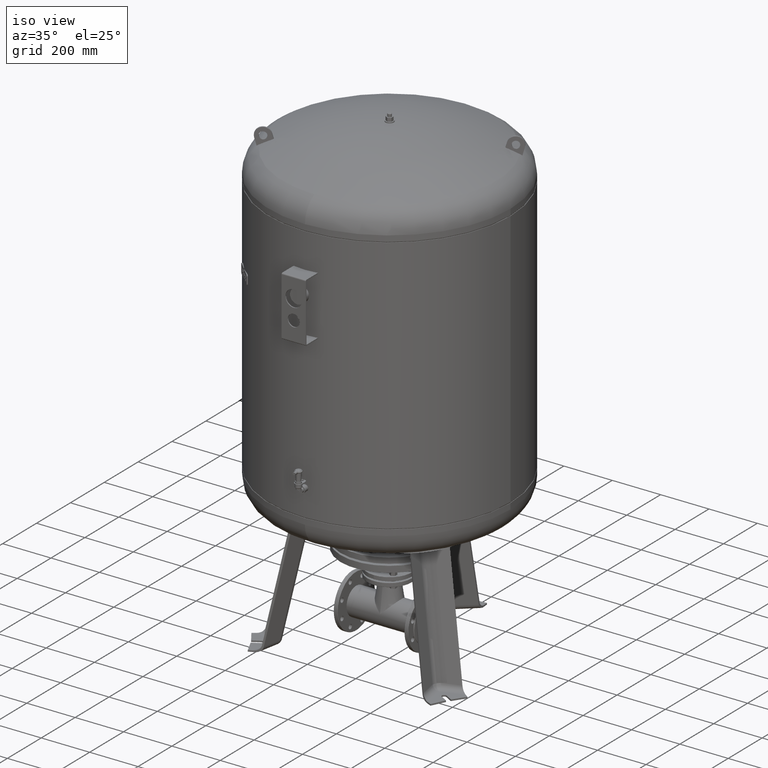
[diagram: clean part render]
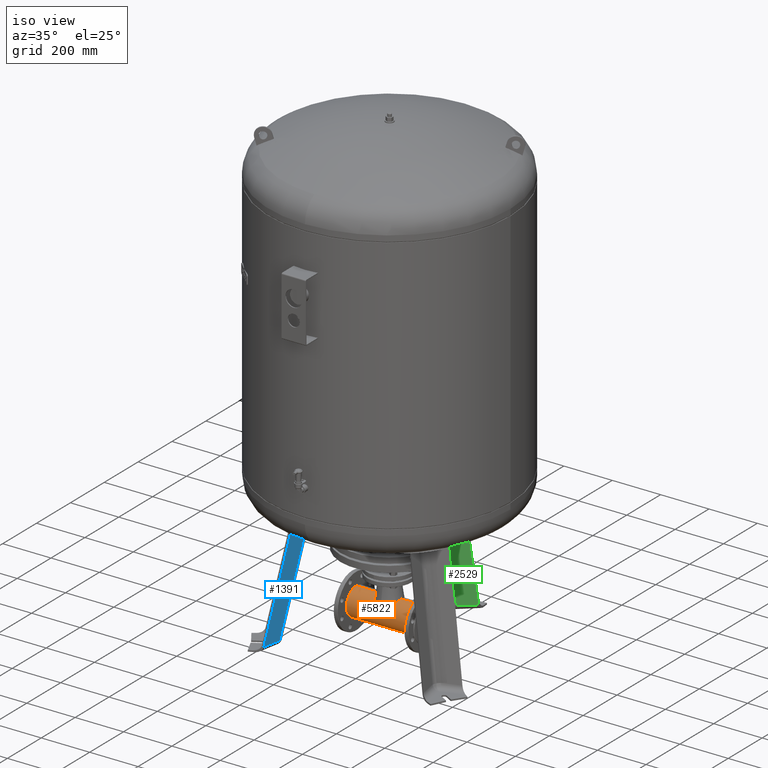
[diagram: same view with three faces highlighted in distinct colors, each labeled with its STEP entity id]
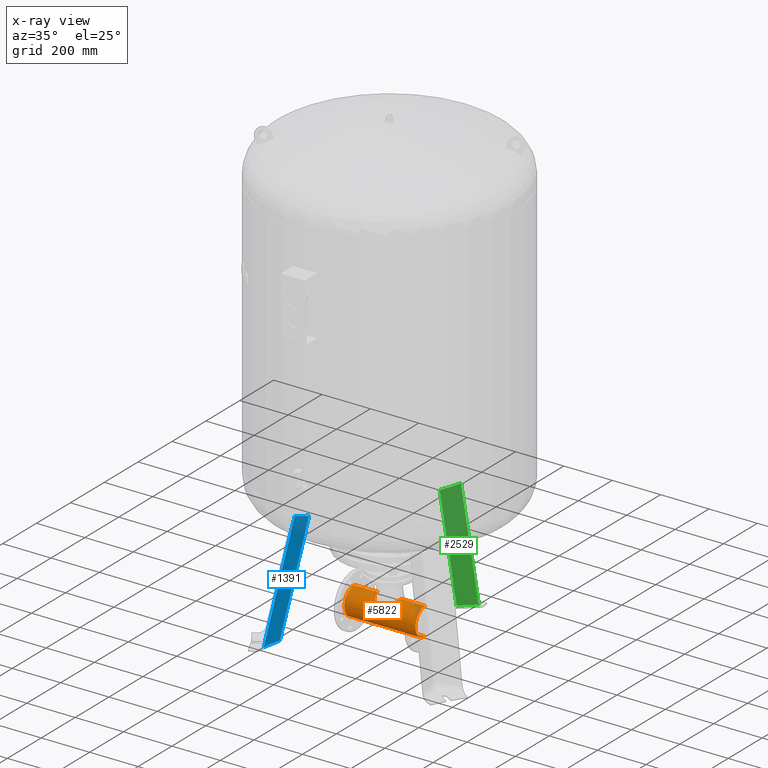
[diagram: x-ray of the same camera — body ghosted, the three highlighted faces saturated]
A machine part, iso view with three faces highlighted in distinct colors.
The next image is the same camera in x-ray (body ghosted, the three faces saturated) — at least one of them is partly hidden behind the body in this view.
Their STEP definitions:

[orange] entity #5822 — the highlighted cylindrical surface (edge-blend (fillet) strip) has radius 57.15 mm, axis along (1, -0, 0).
#5657=CARTESIAN_POINT('',(147.0,-1.049828E-014,197.150000000000010));
#5658=VERTEX_POINT('',#5657);
#5659=CARTESIAN_POINT('',(49.121056086290146,-1.049828E-014,197.149999999999980));
#5660=VERTEX_POINT('',#5659);
#5661=CARTESIAN_POINT('',(147.0,-1.049828E-014,197.150000000000010));
#5662=DIRECTION('',(-1.0,0.0,0.0));
#5663=VECTOR('',#5662,97.878943913709861);
#5664=LINE('',#5661,#5663);
#5665=EDGE_CURVE('',#5658,#5660,#5664,.T.);
#5667=CARTESIAN_POINT('',(147.0,1.749691E-014,82.850000000000051));
#5668=VERTEX_POINT('',#5667);
#5676=CARTESIAN_POINT('',(-147.000000000000030,1.749691E-014,82.850000000000023));
#5677=VERTEX_POINT('',#5676);
#5678=CARTESIAN_POINT('',(147.0,1.749691E-014,82.850000000000051));
#5679=DIRECTION('',(-1.0,0.0,0.0));
#5680=VECTOR('',#5679,294.0);
#5681=LINE('',#5678,#5680);
#5682=EDGE_CURVE('',#5668,#5677,#5681,.T.);
#5684=CARTESIAN_POINT('',(-147.000000000000030,-1.049828E-014,197.149999999999920));
#5685=VERTEX_POINT('',#5684);
#5693=CARTESIAN_POINT('',(-49.121056086290160,-1.049828E-014,197.149999999999980));
#5694=VERTEX_POINT('',#5693);
#5695=CARTESIAN_POINT('',(-49.121056086290160,-1.049828E-014,197.149999999999980));
#5696=DIRECTION('',(-1.0,0.0,0.0));
#5697=VECTOR('',#5696,97.878943913709861);
#5698=LINE('',#5695,#5697);
#5699=EDGE_CURVE('',#5694,#5685,#5698,.T.);
#5725=CARTESIAN_POINT('',(0.0,-56.501274208526922,148.586530895119520));
#5726=VERTEX_POINT('',#5725);
#5750=CARTESIAN_POINT('',(8.685118123973661,8.881784E-015,140.0));
#5751=DIRECTION('',(-0.703059135475485,1.306327E-016,-0.711131388721144));
#5752=DIRECTION('',(-0.711131388721144,1.102756E-016,0.703059135475485));
#5753=AXIS2_PLACEMENT_3D('',#5750,#5751,#5752);
#5754=ELLIPSE('',#5753,81.287614535225259,57.149999999999928);
#5755=EDGE_CURVE('',#5726,#5694,#5754,.T.);
#5766=CARTESIAN_POINT('',(-8.685118123973652,-1.631557E-030,140.0));
#5767=DIRECTION('',(0.703059135475485,1.306327E-016,-0.711131388721144));
#5768=DIRECTION('',(-0.711131388721144,2.022660E-016,-0.703059135475485));
#5769=AXIS2_PLACEMENT_3D('',#5766,#5767,#5768);
#5770=ELLIPSE('',#5769,81.287614535225231,57.149999999999942);
#5771=EDGE_CURVE('',#5660,#5726,#5770,.T.);
#5791=CARTESIAN_POINT('',(-147.000000000000030,3.306970E-030,139.999999999999970));
#5792=DIRECTION('',(1.0,0.0,0.0));
#5793=DIRECTION('',(0.0,0.0,1.0));
#5794=AXIS2_PLACEMENT_3D('',#5791,#5792,#5793);
#5795=CIRCLE('',#5794,57.149999999999949);
#5796=EDGE_CURVE('',#5685,#5677,#5795,.T.);
#5802=CARTESIAN_POINT('',(-1.776357E-014,7.245570E-046,140.0));
#5803=DIRECTION('',(1.0,-2.249640E-032,1.224647E-016));
#5804=DIRECTION('',(0.0,0.0,1.0));
#5805=AXIS2_PLACEMENT_3D('',#5802,#5803,#5804);
#5806=CYLINDRICAL_SURFACE('',#5805,57.149999999999963);
#5807=ORIENTED_EDGE('',*,*,#5665,.T.);
#5808=ORIENTED_EDGE('',*,*,#5771,.T.);
#5809=ORIENTED_EDGE('',*,*,#5755,.T.);
#5810=ORIENTED_EDGE('',*,*,#5699,.T.);
#5811=ORIENTED_EDGE('',*,*,#5796,.T.);
#5812=ORIENTED_EDGE('',*,*,#5682,.F.);
#5813=CARTESIAN_POINT('',(147.0,-3.306970E-030,140.000000000000030));
#5814=DIRECTION('',(1.0,0.0,0.0));
#5815=DIRECTION('',(0.0,0.0,1.0));
#5816=AXIS2_PLACEMENT_3D('',#5813,#5814,#5815);
#5817=CIRCLE('',#5816,57.149999999999977);
#5818=EDGE_CURVE('',#5658,#5668,#5817,.T.);
#5819=ORIENTED_EDGE('',*,*,#5818,.F.);
#5820=EDGE_LOOP('',(#5807,#5808,#5809,#5810,#5811,#5812,#5819));
#5821=FACE_OUTER_BOUND('',#5820,.T.);
#5822=ADVANCED_FACE('',(#5821),#5806,.T.);

[blue] entity #1391 — the highlighted planar face has unit normal (0.9697, -0.1854, -0.1588).
#1184=CARTESIAN_POINT('',(-314.068076985219480,-199.960057248237350,21.029948423057281));
#1185=VERTEX_POINT('',#1184);
#1252=CARTESIAN_POINT('',(-237.372993449705430,-221.917851237409760,515.016008075238010));
#1253=VERTEX_POINT('',#1252);
#1261=CARTESIAN_POINT('',(-227.498435415772320,-149.979051384467770,491.314238600476020));
#1262=VERTEX_POINT('',#1261);
#1263=CARTESIAN_POINT('',(-227.498435415772320,-149.979051384467770,491.314238600476020));
#1264=CARTESIAN_POINT('',(-228.008864984088210,-153.480311267097700,492.285612555272960));
#1265=CARTESIAN_POINT('',(-228.515005307553620,-156.986651977787320,493.289112018364160));
#1266=CARTESIAN_POINT('',(-230.043762397525770,-167.674279172954130,496.433369218256590));
#1267=CARTESIAN_POINT('',(-231.054041059085250,-174.870713978407570,498.667159290237410));
#1268=CARTESIAN_POINT('',(-233.878238675113070,-195.338599014518650,505.320924596915400));
#1269=CARTESIAN_POINT('',(-235.654790885198570,-208.637566055382450,510.001214573362460));
#1270=CARTESIAN_POINT('',(-237.372993449705430,-221.917851237409760,515.016008075238010));
#1271=B_SPLINE_CURVE_WITH_KNOTS('',3,(#1263,#1264,#1265,#1266,#1267,#1268,#1269,#1270),.UNSPECIFIED.,.F.,.U.,(4,2,2,4),(5.453253502265779,6.515864870681246,8.687819827574995,12.681292855444173),.UNSPECIFIED.);
#1272=EDGE_CURVE('',#1262,#1253,#1271,.T.);
#1341=CARTESIAN_POINT('',(-227.498435415772320,-149.979051384467770,491.314238600476020));
#1342=DIRECTION('',(-0.180056805991956,-0.103955845408880,-0.978147600733805));
#1343=VECTOR('',#1342,480.790720975660350);
#1344=LINE('',#1341,#1343);
#1345=EDGE_CURVE('',#1262,#1185,#1344,.T.);
#1368=CARTESIAN_POINT('',(-326.402879907382330,-188.448790578796210,-67.735293817669458));
#1369=DIRECTION('',(0.969740897595359,-0.185430570007245,-0.158802063077709));
#1370=DIRECTION('',(-0.180056805991956,-0.103955845408880,-0.978147600733806));
#1371=AXIS2_PLACEMENT_3D('',#1368,#1369,#1370);
#1372=PLANE('',#1371);
#1373=CARTESIAN_POINT('',(-328.305642099864660,-274.417840413704710,21.029948423057284));
#1374=VERTEX_POINT('',#1373);
#1375=CARTESIAN_POINT('',(-328.305642099864660,-274.417840413704710,21.029948423057284));
#1376=DIRECTION('',(0.180056805991956,0.103955845408880,0.978147600733806));
#1377=VECTOR('',#1376,505.022002079842310);
#1378=LINE('',#1375,#1377);
#1379=EDGE_CURVE('',#1374,#1253,#1378,.T.);
#1380=ORIENTED_EDGE('',*,*,#1379,.F.);
#1381=CARTESIAN_POINT('',(-314.068076985219480,-199.960057248237350,21.029948423057281));
#1382=DIRECTION('',(-0.187813845079449,-0.982204642422582,4.686537E-017));
#1383=VECTOR('',#1382,75.806792138366575);
#1384=LINE('',#1381,#1383);
#1385=EDGE_CURVE('',#1185,#1374,#1384,.T.);
#1386=ORIENTED_EDGE('',*,*,#1385,.F.);
#1387=ORIENTED_EDGE('',*,*,#1345,.F.);
#1388=ORIENTED_EDGE('',*,*,#1272,.T.);
#1389=EDGE_LOOP('',(#1380,#1386,#1387,#1388));
#1390=FACE_OUTER_BOUND('',#1389,.T.);
#1391=ADVANCED_FACE('',(#1390),#1372,.T.);

[green] entity #2529 — the highlighted planar face has unit normal (0.6455, -0.7471, -0.1588).
#2271=CARTESIAN_POINT('',(16.136450826554498,272.008950083506190,491.314238600476020));
#2272=VERTEX_POINT('',#2271);
#2284=CARTESIAN_POINT('',(73.499999999999943,316.529968118506870,515.016008075238010));
#2285=VERTEX_POINT('',#2284);
#2286=CARTESIAN_POINT('',(73.499999999999943,316.529968118506870,515.016008075238010));
#2287=CARTESIAN_POINT('',(62.858036945115671,308.401818457782720,510.001214573362230));
#2288=CARTESIAN_POINT('',(52.229069748678569,300.213795592267620,505.320924596915180));
#2289=CARTESIAN_POINT('',(35.915460153680954,287.534026193424550,498.667159290237180));
#2290=CARTESIAN_POINT('',(30.188304126259531,283.060881804885870,496.433369218256930));
#2291=CARTESIAN_POINT('',(21.696926014053837,276.393125731171150,493.289112018364510));
#2292=CARTESIAN_POINT('',(18.913416046005374,274.201624997825430,492.285612555272960));
#2293=CARTESIAN_POINT('',(16.136450826554498,272.008950083506190,491.314238600476020));
#2294=B_SPLINE_CURVE_WITH_KNOTS('',3,(#2286,#2287,#2288,#2289,#2290,#2291,#2292,#2293),.UNSPECIFIED.,.F.,.U.,(4,2,2,4),(536.762478861198470,540.755951889067660,542.927906845961390,543.990518214376830),.UNSPECIFIED.);
#2295=EDGE_CURVE('',#2285,#2272,#2294,.T.);
#2332=CARTESIAN_POINT('',(16.136450826554547,371.970961811045530,21.029948423057292));
#2333=VERTEX_POINT('',#2332);
#2341=CARTESIAN_POINT('',(16.136450826554547,371.970961811045530,21.029948423057292));
#2342=DIRECTION('',(-1.034504E-016,-0.207911690817760,0.978147600733805));
#2343=VECTOR('',#2342,480.790720975660350);
#2344=LINE('',#2341,#2343);
#2345=EDGE_CURVE('',#2333,#2272,#2344,.T.);
#2476=CARTESIAN_POINT('',(73.500000000000000,421.529946471096990,21.029948423057292));
#2477=VERTEX_POINT('',#2476);
#2478=CARTESIAN_POINT('',(73.500000000000000,421.529946471096990,21.029948423057292));
#2479=DIRECTION('',(-1.125563E-016,-0.207911690817760,0.978147600733806));
#2480=VECTOR('',#2479,505.022002079842310);
#2481=LINE('',#2478,#2480);
#2482=EDGE_CURVE('',#2477,#2285,#2481,.T.);
#2513=CARTESIAN_POINT('',(73.500000000000000,440.397581157592580,-67.735293817669458));
#2514=DIRECTION('',(0.645458033062182,-0.747104967402683,-0.158802063077709));
#2515=DIRECTION('',(1.070315E-016,0.207911690817760,-0.978147600733806));
#2516=AXIS2_PLACEMENT_3D('',#2513,#2514,#2515);
#2517=PLANE('',#2516);
#2518=ORIENTED_EDGE('',*,*,#2345,.F.);
#2519=CARTESIAN_POINT('',(73.500000000000000,421.529946471096990,21.029948423057292));
#2520=DIRECTION('',(-0.756707249513243,-0.653753882232529,0.0));
#2521=VECTOR('',#2520,75.806792138366532);
#2522=LINE('',#2519,#2521);
#2523=EDGE_CURVE('',#2477,#2333,#2522,.T.);
#2524=ORIENTED_EDGE('',*,*,#2523,.F.);
#2525=ORIENTED_EDGE('',*,*,#2482,.T.);
#2526=ORIENTED_EDGE('',*,*,#2295,.T.);
#2527=EDGE_LOOP('',(#2518,#2524,#2525,#2526));
#2528=FACE_OUTER_BOUND('',#2527,.T.);
#2529=ADVANCED_FACE('',(#2528),#2517,.T.);